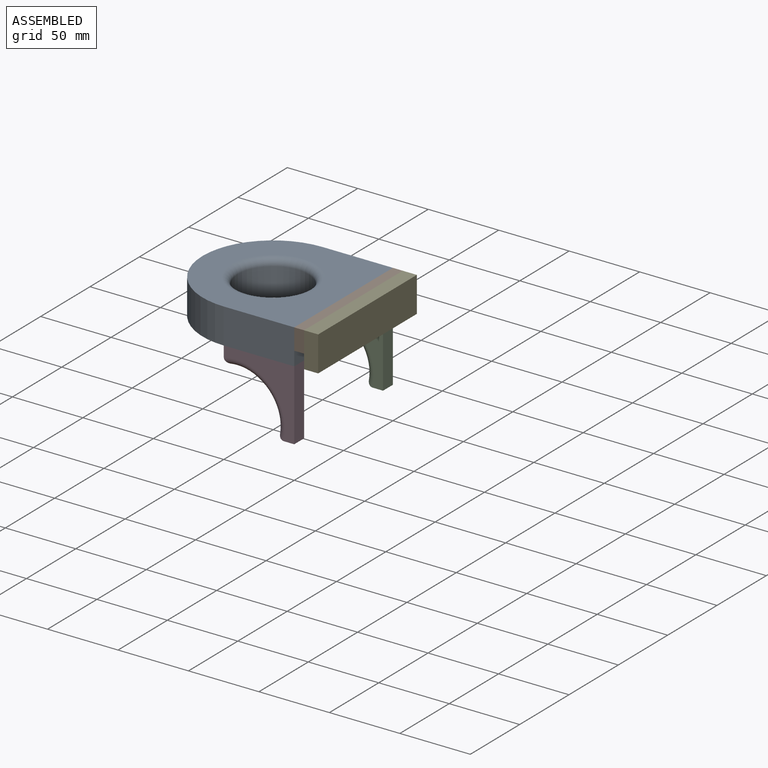
[diagram: assembled view]
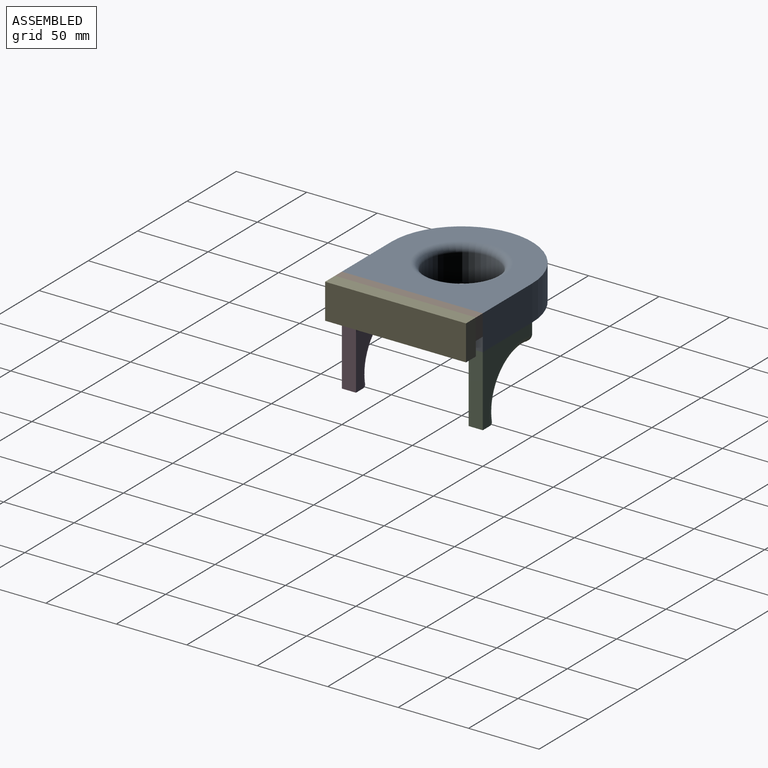
[diagram: assembled view, second angle]
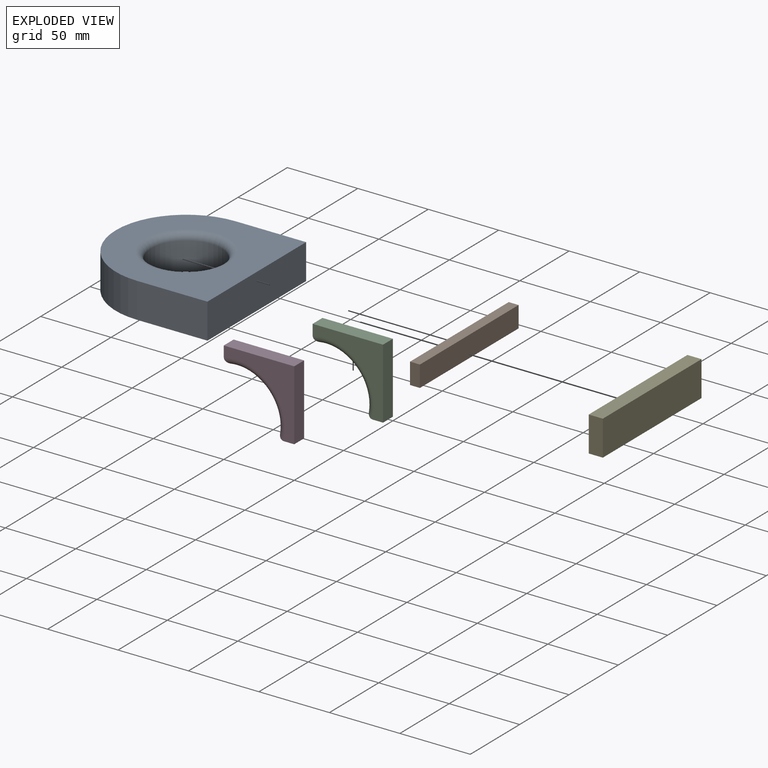
[diagram: exploded view]
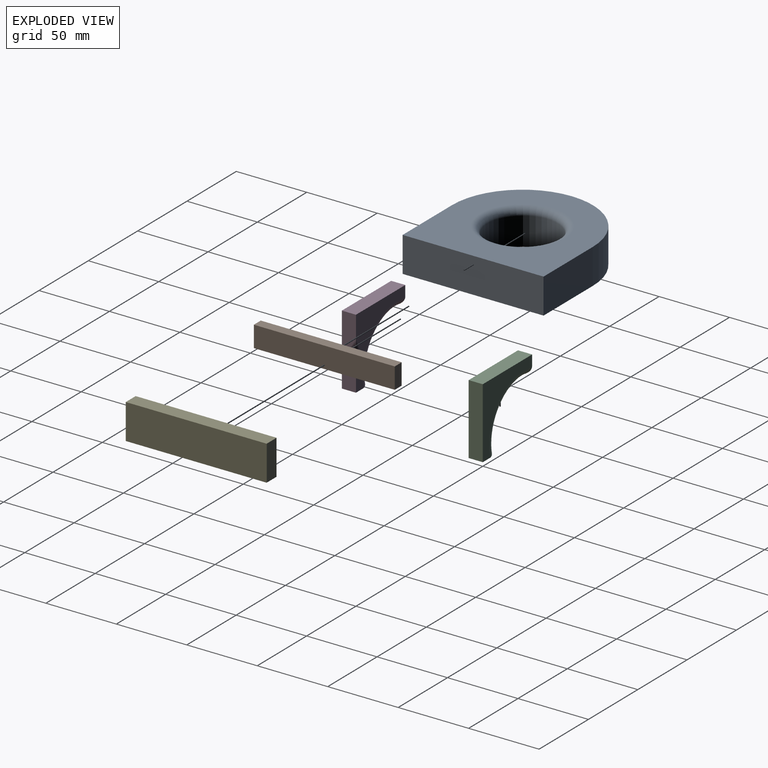
[diagram: exploded view, second angle]
ASSEMBLY  parts=5 mates=4
PART A: 8 faces, bbox 100x100x25 mm
  f0: plane 50x25mm, normal (0,1,0), area 1250mm2, adj f2,f3,f4,f7
  f1: plane 50x25mm, normal (0,-1,0), area 1250mm2, adj f2,f3,f4,f7
  f2: plane 100x25mm, normal (1,0,0), area 2500mm2, adj f0,f1,f3,f4
  f3: plane 100x100mm, normal (0,0,-1), area 6963.5mm2, adj f0,f1,f2,f5,f7
  f4: plane 100x100mm, normal (0,0,1), area 6099.6mm2, adj f0,f1,f2,f6,f7
  f5: cylinder r=25mm len=50mm, axis (0,0,1), area 3141.6mm2, adj f3,f6
  f6: torus R=30mm, axis (0,0,1), area 1323.4mm2, adj f4,f5
  f7: cylinder r=50mm len=100mm, axis (0,0,1), area 3927mm2, adj f0,f1,f3,f4
PART B: 6 faces, bbox 100x15x7 mm
  f0: plane 100x7mm, normal (0,1,0), area 700mm2, adj f1,f3,f4,f5
  f1: plane 15x7mm, normal (-1,0,0), area 105mm2, adj f0,f2,f4,f5
  f2: plane 100x7mm, normal (0,-1,0), area 700mm2, adj f1,f3,f4,f5
  f3: plane 15x7mm, normal (1,0,0), area 105mm2, adj f0,f2,f4,f5
  f4: plane 100x15mm, normal (0,0,1), area 1500mm2, adj f0,f1,f2,f3
  f5: plane 100x15mm, normal (0,0,-1), area 1500mm2, adj f0,f1,f2,f3
PART C: 9 faces, bbox 51.5x51.5x10 mm
  f0: plane 10x7.13mm, normal (0,-1,0), area 71.3mm2, adj f3,f4,f5,f8
  f1: plane 10x7.13mm, normal (1,0,0), area 71.3mm2, adj f2,f4,f5,f6
  f2: plane 50x10mm, normal (0,1,0), area 500mm2, adj f1,f3,f4,f5
  f3: plane 50x10mm, normal (-1,0,0), area 500mm2, adj f0,f2,f4,f5
  f4: plane 50x50mm, normal (0,0,1), area 918.8mm2, adj f0,f1,f2,f3,f6,f7,f8
  f5: plane 50x50mm, normal (0,0,-1), area 918.8mm2, adj f0,f1,f2,f3,f6,f7,f8
  f6: cylinder r=5mm len=10mm, axis (0,0,-1), area 56.1mm2, adj f1,f4,f5,f7
  f7: torus R=35mm, axis (0,0,1), area 967.2mm2, adj f4,f5,f6,f8
  f8: cylinder r=5mm len=10mm, axis (0,0,-1), area 56.1mm2, adj f0,f4,f5,f7
PART D: same geometry as C
PART E: 6 faces, bbox 100x25x10 mm
  f0: plane 100x10mm, normal (0,1,0), area 1000mm2, adj f1,f3,f4,f5
  f1: plane 25x10mm, normal (-1,0,0), area 250mm2, adj f0,f2,f4,f5
  f2: plane 100x10mm, normal (0,-1,0), area 1000mm2, adj f1,f3,f4,f5
  f3: plane 25x10mm, normal (1,0,0), area 250mm2, adj f0,f2,f4,f5
  f4: plane 100x25mm, normal (0,0,1), area 2500mm2, adj f0,f1,f2,f3
  f5: plane 100x25mm, normal (0,0,-1), area 2500mm2, adj f0,f1,f2,f3
PLACE A at identity
PLACE B rot(axis=(-0.58,-0.58,0.58),120deg) t=(7,8.4,-34.5)mm
PLACE C rot(axis=(0,0.71,0.71),180deg) t=(-31.6,40,-32.27)mm
PLACE D rot(axis=(0,0.71,0.71),180deg) t=(-31.6,-50,-32.27)mm
PLACE E rot(axis=(0.58,-0.58,-0.58),120deg) t=(17,-1.12,16.01)mm
MATE fastened B.f4 <-> A.f2  axis (-1,0,0) through (0,0,-12.5)mm
MATE fastened D.f2 <-> A.f3  axis (0,0,1) through (-25,-45,-25)mm
MATE fastened C.f2 <-> A.f3  axis (0,0,1) through (-25,45,-25)mm
MATE fastened E.f4 <-> B.f5  axis (-1,0,0) through (7,0,-7.5)mm
